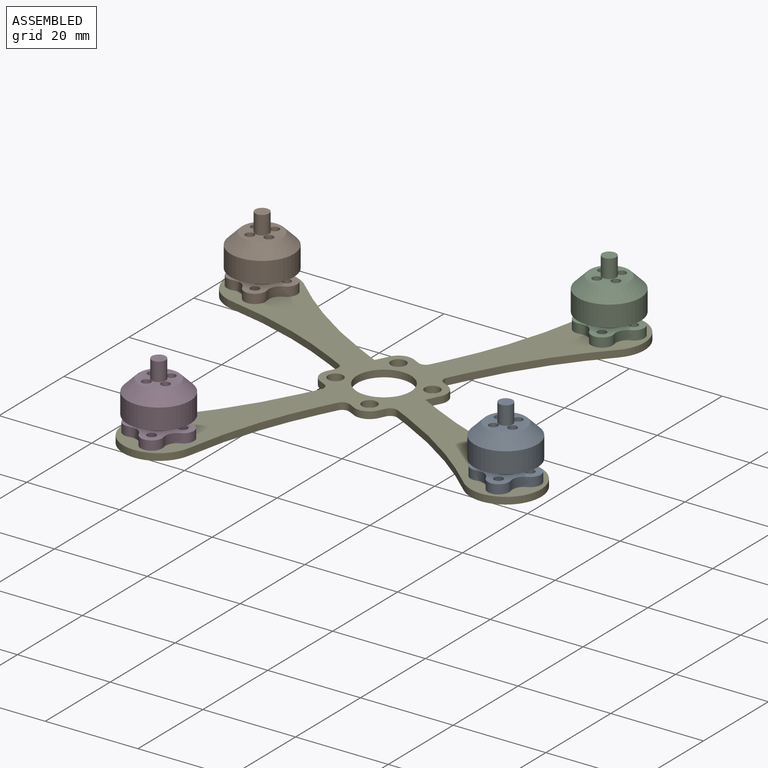
[diagram: assembled view]
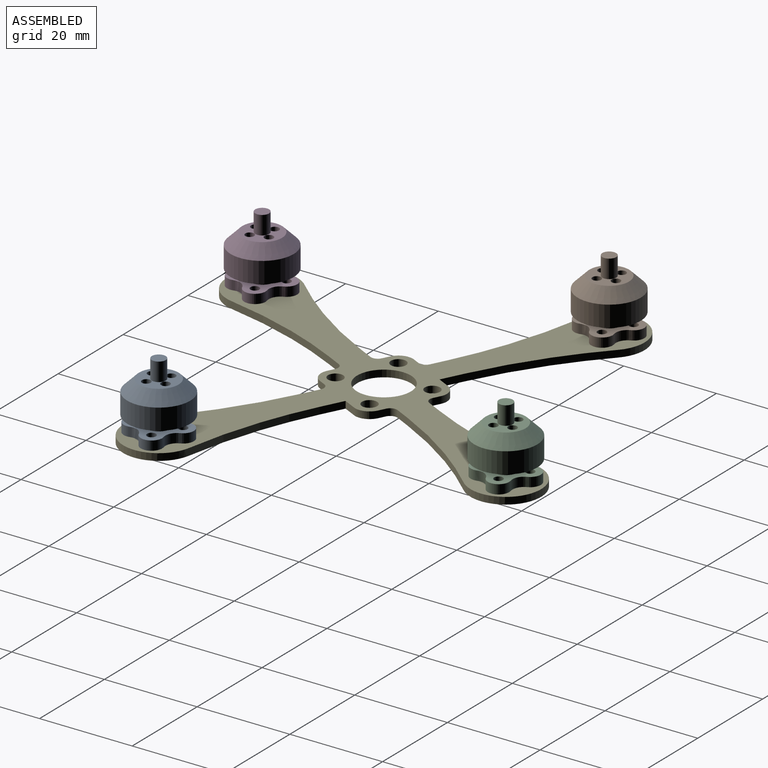
[diagram: assembled view, second angle]
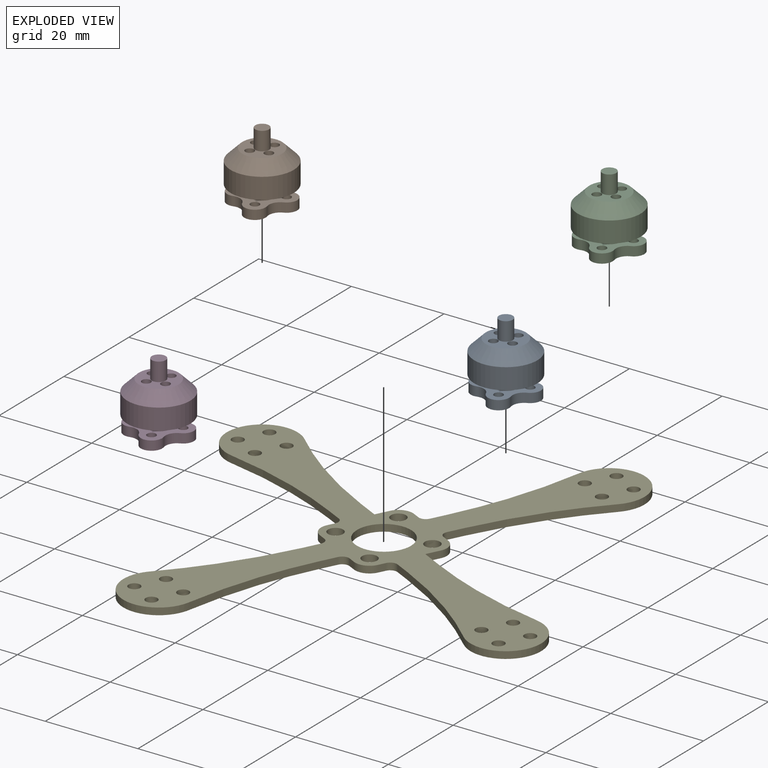
[diagram: exploded view]
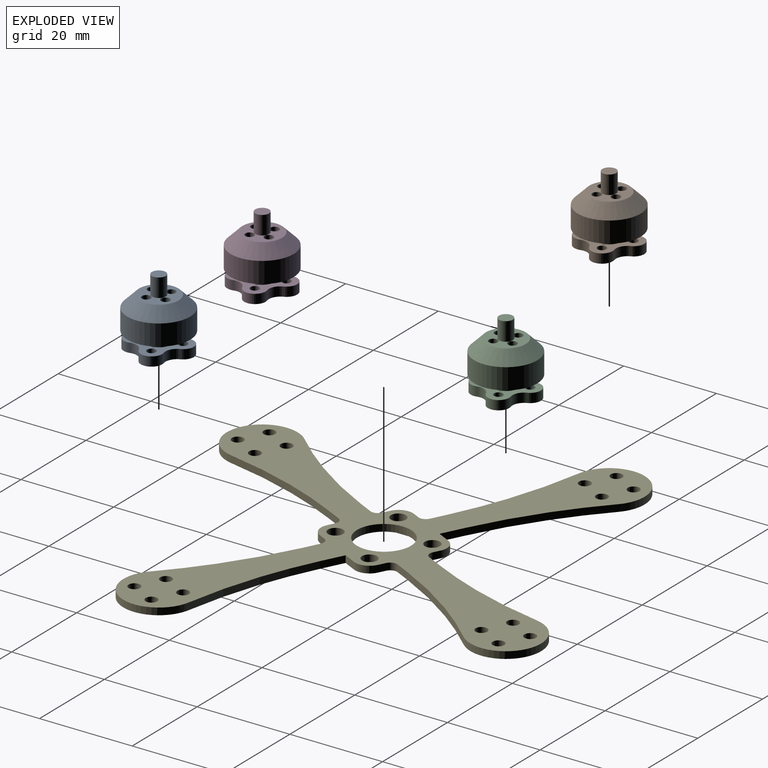
[diagram: exploded view, second angle]
ASSEMBLY  parts=5 mates=12
PART A: 29 faces, bbox 13.6x13.6x15 mm
  f0: plane 10.96x10.96mm, normal (0,0,-1), area 88.7mm2, adj f1,f18,f19,f20,f21,f22,f23,f24
  f1: cylinder r=0.95mm len=2mm, axis (0,0,-1), area 11.9mm2, adj f0,f2
  f2: plane 10.96x10.96mm, normal (0,0,1), area 64.1mm2, adj f1,f3,f18,f19,f20,f21,f22,f23
  f3: cylinder r=2.8mm len=5.6mm, axis (0,0,1), area 35.2mm2, adj f2,f4
  f4: plane 13.6x13.6mm, normal (0,0,-1), area 120.6mm2, adj f3,f5
  f5: cylinder r=6.8mm len=13.6mm, axis (0,0,1), area 192.3mm2, adj f4,f6
  f6: cone r=5.55mm half-angle=45deg, axis (0,0,-1), area 123.3mm2, adj f5,f7
  f7: plane 8.6x8.6mm, normal (0,0,1), area 39.7mm2, adj f6,f8,f10,f15,f16,f17
  f8: cylinder r=1.5mm len=4mm, axis (0,0,1), area 37.7mm2, adj f7,f9
  f9: plane 3x3mm, normal (0,0,1), area 7.1mm2, adj f8
  f10: cylinder r=0.95mm len=4mm, axis (0,0,1), area 23.9mm2, adj f7,f11
  f11: plane 1.9x1.9mm, normal (0,0,1), area 2.8mm2, adj f10
  f12: plane 1.9x1.9mm, normal (0,0,1), area 2.8mm2, adj f15
  f13: plane 1.9x1.9mm, normal (0,0,1), area 2.8mm2, adj f16
  f14: plane 1.9x1.9mm, normal (0,0,1), area 2.8mm2, adj f17
  f15: cylinder r=0.95mm len=4mm, axis (0,0,1), area 23.9mm2, adj f7,f12
  f16: cylinder r=0.95mm len=4mm, axis (0,0,1), area 23.9mm2, adj f7,f13
  f17: cylinder r=0.95mm len=4mm, axis (0,0,1), area 23.9mm2, adj f7,f14
  f18: cylinder r=0.95mm len=2mm, axis (0,0,-1), area 11.9mm2, adj f0,f2
  f19: cylinder r=0.95mm len=2mm, axis (0,0,-1), area 11.9mm2, adj f0,f2
  f20: cylinder r=0.95mm len=2mm, axis (0,0,-1), area 11.9mm2, adj f0,f2
  f21: cylinder r=2.5mm len=3.31mm, axis (0,0,-1), area 7.2mm2, adj f0,f2,f22,f28
  f22: cylinder r=2.3mm len=3.82mm, axis (0,0,-1), area 13.9mm2, adj f0,f2,f21,f23
  f23: cylinder r=2.5mm len=3.31mm, axis (0,0,-1), area 7.2mm2, adj f0,f2,f22,f24
  f24: cylinder r=2.3mm len=3.82mm, axis (0,0,-1), area 13.9mm2, adj f0,f2,f23,f25
  f25: cylinder r=2.5mm len=3.31mm, axis (0,0,-1), area 7.2mm2, adj f0,f2,f24,f26
  f26: cylinder r=2.3mm len=3.82mm, axis (0,0,-1), area 13.9mm2, adj f0,f2,f25,f27
  f27: cylinder r=2.5mm len=3.31mm, axis (0,0,-1), area 7.2mm2, adj f0,f2,f26,f28
  f28: cylinder r=2.3mm len=3.82mm, axis (0,0,-1), area 13.9mm2, adj f0,f2,f21,f27
PART B: same geometry as A
PART C: same geometry as A
PART D: same geometry as A
PART E: 84 faces, bbox 79.3x79.3x1.5 mm
  f0: plane 79.32x79.32mm, normal (0,0,1), area 1797.2mm2, adj f1,f2,f3,f4,f5,f6,f7,f8
  f1: plane 1.5x1.16mm, normal (-0.71,-0.71,0), area 2.5mm2, adj f0,f2,f40,f83
  f2: cylinder r=1.5mm len=2.12mm, axis (0,0,1), area 3.5mm2, adj f0,f1,f3,f83
  f3: plane 2.61x2.61mm, normal (-0.71,0.71,0), area 5.5mm2, adj f0,f2,f4,f83
  f4: cylinder r=100mm len=23.04mm, axis (0,0,1), area 43.3mm2, adj f0,f3,f5,f83
  f5: cylinder r=7.63mm len=14.34mm, axis (0,0,1), area 42.6mm2, adj f0,f4,f6,f83
  f6: cylinder r=100mm len=23.04mm, axis (0,0,1), area 43.3mm2, adj f0,f5,f7,f83
  f7: plane 2.61x2.61mm, normal (0.71,-0.71,0), area 5.5mm2, adj f0,f6,f8,f83
  f8: cylinder r=1.5mm len=2.12mm, axis (0,0,1), area 3.5mm2, adj f0,f7,f9,f83
  f9: plane 1.5x1.16mm, normal (-0.71,-0.71,0), area 2.5mm2, adj f0,f8,f10,f83
  f10: cylinder r=3.12mm len=4.42mm, axis (0,0,1), area 7.4mm2, adj f0,f9,f11,f83
  f11: plane 1.5x1.16mm, normal (0.71,-0.71,0), area 2.5mm2, adj f0,f10,f12,f83
  f12: cylinder r=1.5mm len=2.12mm, axis (0,0,1), area 3.5mm2, adj f0,f11,f13,f83
  f13: plane 2.61x2.61mm, normal (-0.71,-0.71,0), area 5.5mm2, adj f0,f12,f14,f83
  f14: cylinder r=100mm len=23.04mm, axis (0,0,1), area 43.3mm2, adj f0,f13,f15,f83
  f15: cylinder r=7.63mm len=14.34mm, axis (0,0,1), area 42.6mm2, adj f0,f14,f16,f83
  f16: cylinder r=100mm len=23.04mm, axis (0,0,1), area 43.3mm2, adj f0,f15,f17,f83
  f17: plane 3.67x3.67mm, normal (0.71,0.71,0), area 7.8mm2, adj f0,f16,f18,f83
  f18: plane 2.22x2.22mm, normal (0.71,-0.71,0), area 4.7mm2, adj f0,f17,f19,f83
  f19: cylinder r=3.12mm len=2.21mm, axis (0,0,1), area 3.7mm2, adj f0,f18,f20,f83
  f20: cylinder r=3.12mm len=2.21mm, axis (0,0,1), area 3.7mm2, adj f0,f19,f21,f83
  f21: plane 1.5x1.16mm, normal (0.71,0.71,0), area 2.5mm2, adj f0,f20,f22,f83
  f22: cylinder r=1.5mm len=2.12mm, axis (0,0,1), area 3.5mm2, adj f0,f21,f23,f83
  f23: plane 2.61x2.61mm, normal (0.71,-0.71,0), area 5.5mm2, adj f0,f22,f24,f83
  f24: cylinder r=100mm len=23.04mm, axis (0,0,1), area 43.3mm2, adj f0,f23,f25,f83
  f25: cylinder r=7.63mm len=14.34mm, axis (0,0,1), area 42.6mm2, adj f0,f24,f26,f83
  f26: cylinder r=100mm len=23.04mm, axis (0,0,1), area 43.3mm2, adj f0,f25,f27,f83
  f27: plane 2.61x2.61mm, normal (-0.71,0.71,0), area 5.5mm2, adj f0,f26,f28,f83
  f28: cylinder r=1.5mm len=2.12mm, axis (0,0,1), area 3.5mm2, adj f0,f27,f29,f83
  f29: plane 1.5x1.16mm, normal (0.71,0.71,0), area 2.5mm2, adj f0,f28,f30,f83
  f30: cylinder r=3.12mm len=4.42mm, axis (0,0,1), area 7.4mm2, adj f0,f29,f31,f83
  f31: plane 2.22x2.22mm, normal (-0.71,0.71,0), area 4.7mm2, adj f0,f30,f32,f83
  f32: plane 3.67x3.67mm, normal (0.71,0.71,0), area 7.8mm2, adj f0,f31,f33,f83
  f33: cylinder r=100mm len=23.04mm, axis (0,0,1), area 43.3mm2, adj f0,f32,f34,f83
  f34: cylinder r=7.63mm len=14.34mm, axis (0,0,1), area 42.6mm2, adj f0,f33,f35,f83
  f35: cylinder r=100mm len=23.04mm, axis (0,0,1), area 43.3mm2, adj f0,f34,f36,f83
  f36: plane 2.61x2.61mm, normal (-0.71,-0.71,0), area 5.5mm2, adj f0,f35,f37,f83
  f37: cylinder r=1.5mm len=2.12mm, axis (0,0,1), area 3.5mm2, adj f0,f36,f38,f83
  f38: plane 1.5x1.16mm, normal (-0.71,0.71,0), area 2.5mm2, adj f0,f37,f39,f83
  f39: cylinder r=3.12mm len=2.21mm, axis (0,0,1), area 3.7mm2, adj f0,f38,f40,f83
  f40: cylinder r=3.12mm len=2.21mm, axis (0,0,1), area 3.7mm2, adj f0,f1,f39,f83
  f41: cylinder r=1.25mm len=2.5mm, axis (0,0,1), area 5.9mm2, adj f0,f42,f83
  f42: cylinder r=1.25mm len=2.5mm, axis (0,0,1), area 5.9mm2, adj f0,f41,f83
  f43: cylinder r=1.25mm len=2.5mm, axis (0,0,1), area 5.9mm2, adj f0,f44,f83
  f44: cylinder r=1.25mm len=2.5mm, axis (0,0,1), area 5.9mm2, adj f0,f43,f83
  f45: cylinder r=1.25mm len=2.5mm, axis (0,0,1), area 5.9mm2, adj f0,f46,f83
  f46: cylinder r=1.25mm len=2.5mm, axis (0,0,1), area 5.9mm2, adj f0,f45,f83
  f47: cylinder r=1.25mm len=2.5mm, axis (0,0,1), area 5.9mm2, adj f0,f48,f83
  f48: cylinder r=1.25mm len=2.5mm, axis (0,0,1), area 5.9mm2, adj f0,f47,f83
  f49: cylinder r=1.25mm len=2.5mm, axis (0,0,1), area 5.9mm2, adj f0,f50,f83
  f50: cylinder r=1.25mm len=2.5mm, axis (0,0,1), area 5.9mm2, adj f0,f49,f83
  f51: cylinder r=1.25mm len=2.5mm, axis (0,0,1), area 5.9mm2, adj f0,f52,f83
  f52: cylinder r=1.25mm len=2.5mm, axis (0,0,1), area 5.9mm2, adj f0,f51,f83
  f53: cylinder r=1.25mm len=2.5mm, axis (0,0,1), area 5.9mm2, adj f0,f54,f83
  f54: cylinder r=1.25mm len=2.5mm, axis (0,0,1), area 5.9mm2, adj f0,f53,f83
  f55: cylinder r=1.25mm len=2.5mm, axis (0,0,1), area 5.9mm2, adj f0,f56,f83
  f56: cylinder r=1.25mm len=2.5mm, axis (0,0,1), area 5.9mm2, adj f0,f55,f83
  f57: cylinder r=1.25mm len=2.5mm, axis (0,0,1), area 5.9mm2, adj f0,f58,f83
  f58: cylinder r=1.25mm len=2.5mm, axis (0,0,1), area 5.9mm2, adj f0,f57,f83
  f59: cylinder r=1.25mm len=2.5mm, axis (0,0,1), area 5.9mm2, adj f0,f60,f83
  f60: cylinder r=1.25mm len=2.5mm, axis (0,0,1), area 5.9mm2, adj f0,f59,f83
  f61: cylinder r=1.25mm len=2.5mm, axis (0,0,1), area 5.9mm2, adj f0,f62,f83
  f62: cylinder r=1.25mm len=2.5mm, axis (0,0,1), area 5.9mm2, adj f0,f61,f83
  f63: cylinder r=1.25mm len=2.5mm, axis (0,0,1), area 5.9mm2, adj f0,f64,f83
  f64: cylinder r=1.25mm len=2.5mm, axis (0,0,1), area 5.9mm2, adj f0,f63,f83
  f65: cylinder r=1.25mm len=2.5mm, axis (0,0,1), area 5.9mm2, adj f0,f66,f83
  f66: cylinder r=1.25mm len=2.5mm, axis (0,0,1), area 5.9mm2, adj f0,f65,f83
  f67: cylinder r=1.25mm len=2.5mm, axis (0,0,1), area 5.9mm2, adj f0,f68,f83
  f68: cylinder r=1.25mm len=2.5mm, axis (0,0,1), area 5.9mm2, adj f0,f67,f83
  f69: cylinder r=1.25mm len=2.5mm, axis (0,0,1), area 5.9mm2, adj f0,f70,f83
  f70: cylinder r=1.25mm len=2.5mm, axis (0,0,1), area 5.9mm2, adj f0,f69,f83
  f71: cylinder r=1.25mm len=2.5mm, axis (0,0,1), area 5.9mm2, adj f0,f72,f83
  f72: cylinder r=1.25mm len=2.5mm, axis (0,0,1), area 5.9mm2, adj f0,f71,f83
  f73: cylinder r=1.62mm len=3.25mm, axis (0,0,1), area 7.7mm2, adj f0,f74,f83
  f74: cylinder r=1.62mm len=3.25mm, axis (0,0,1), area 7.7mm2, adj f0,f73,f83
  f75: cylinder r=1.62mm len=3.25mm, axis (0,0,1), area 7.7mm2, adj f0,f76,f83
  f76: cylinder r=1.62mm len=3.25mm, axis (0,0,1), area 7.7mm2, adj f0,f75,f83
  f77: cylinder r=1.62mm len=3.25mm, axis (0,0,1), area 7.7mm2, adj f0,f78,f83
  f78: cylinder r=1.62mm len=3.25mm, axis (0,0,1), area 7.7mm2, adj f0,f77,f83
  f79: cylinder r=1.62mm len=3.25mm, axis (0,0,1), area 7.7mm2, adj f0,f80,f83
  f80: cylinder r=1.62mm len=3.25mm, axis (0,0,1), area 7.7mm2, adj f0,f79,f83
  f81: cylinder r=5.81mm len=11.62mm, axis (0,0,-1), area 27.4mm2, adj f0,f82,f83
  f82: cylinder r=5.81mm len=11.62mm, axis (0,0,-1), area 27.4mm2, adj f0,f81,f83
  f83: plane 79.32x79.32mm, normal (0,0,-1), area 1797.2mm2, adj f1,f2,f3,f4,f5,f6,f7,f8
PLACE A rot(axis=(0,0,1),153.4deg) t=(29.9,-89.34,68.98)mm
PLACE B rot(axis=(0,0,-1),116.6deg) t=(-51.04,-48.83,68.98)mm
PLACE C rot(axis=(0,0,1),153.4deg) t=(9.69,-28.62,68.98)mm
PLACE D rot(axis=(0,0,1),153.4deg) t=(-30.83,-109.55,68.98)mm
PLACE E rot(axis=(0,0,1),18.4deg) t=(-10.57,-69.09,67.48)mm
MATE cylindrical B.f20 <-> E.f47  axis (0,0,-1) through (-55.31,-50.25,69.98)mm
MATE cylindrical C.f1 <-> E.f51  axis (0,0,-1) through (5.42,-30.04,70.98)mm
MATE cylindrical C.f18 <-> E.f55  axis (0,0,-1) through (13.96,-27.2,69.98)mm
MATE cylindrical D.f20 <-> E.f61  axis (0,0,-1) through (-32.25,-105.28,69.98)mm
MATE planar D.f3 <-> E.f0  axis (0,0,-1) through (-30.83,-109.55,68.98)mm
MATE cylindrical D.f19 <-> E.f57  axis (0,0,-1) through (-29.41,-113.82,70.98)mm
MATE cylindrical A.f20 <-> E.f69  axis (0,0,-1) through (28.48,-85.07,70.98)mm
MATE planar B.f20 <-> E.f0  axis (0,0,-1) through (-55.31,-50.25,68.98)mm
MATE planar C.f3 <-> E.f81  axis (0,0,-1) through (9.69,-28.62,68.98)mm
MATE cylindrical B.f19 <-> E.f43  axis (0,0,-1) through (-46.77,-47.41,70.98)mm
MATE cylindrical A.f19 <-> E.f65  axis (0,0,-1) through (31.32,-93.61,70.98)mm
MATE planar A.f3 <-> E.f81  axis (0,0,-1) through (29.9,-89.34,68.98)mm
